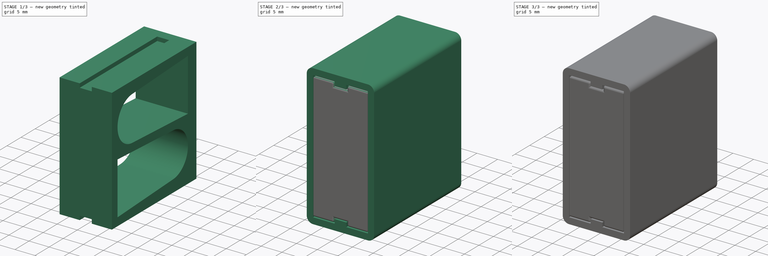
[diagram: build sequence overview — one tinted view per stage of 3, left to right]
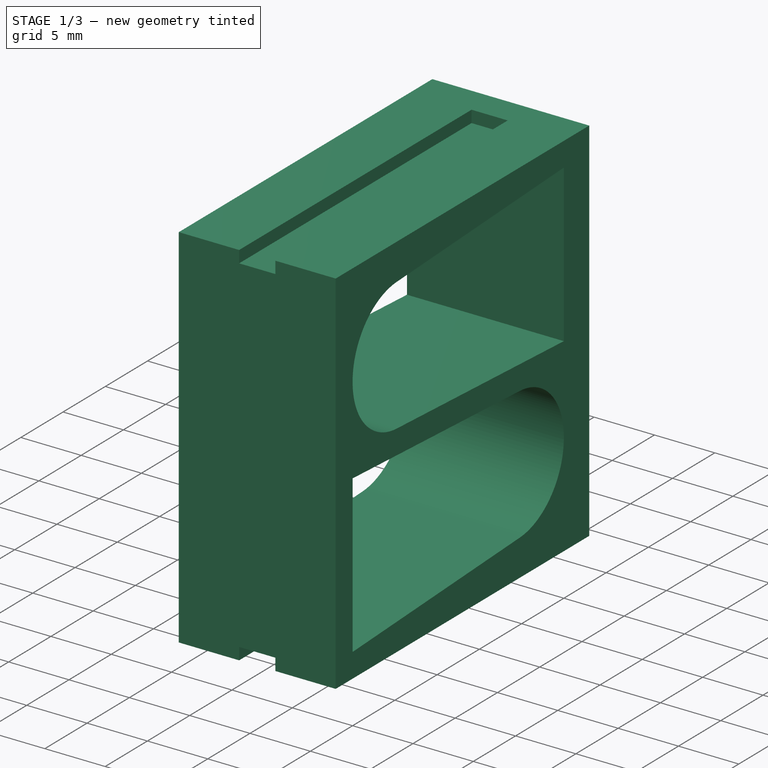
[diagram: stage 1 of 3 — iso view after this stage's code; geometry added in this stage tinted green]
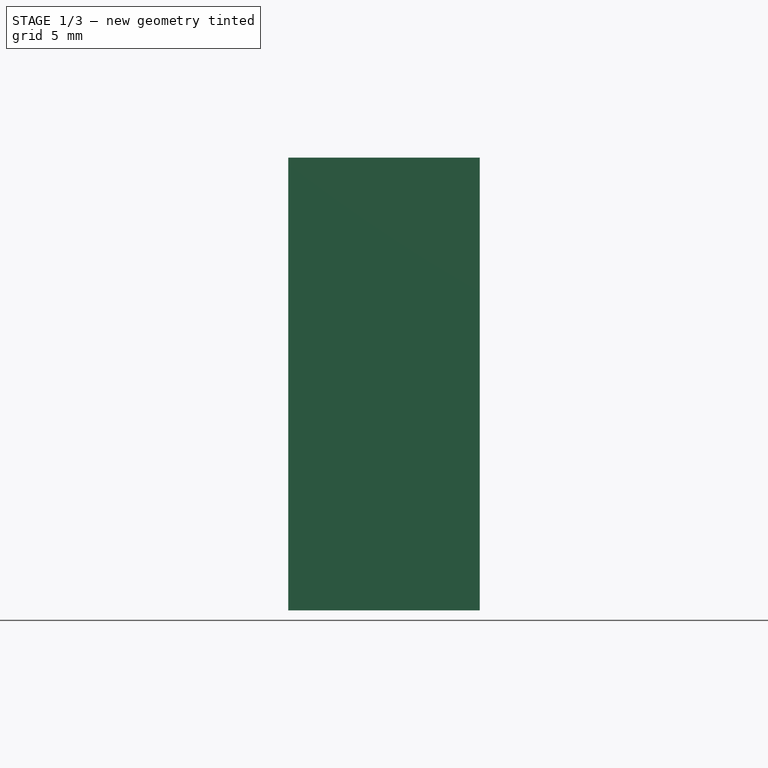
[diagram: stage 1 of 3 — front view after this stage's code; geometry added in this stage tinted green]
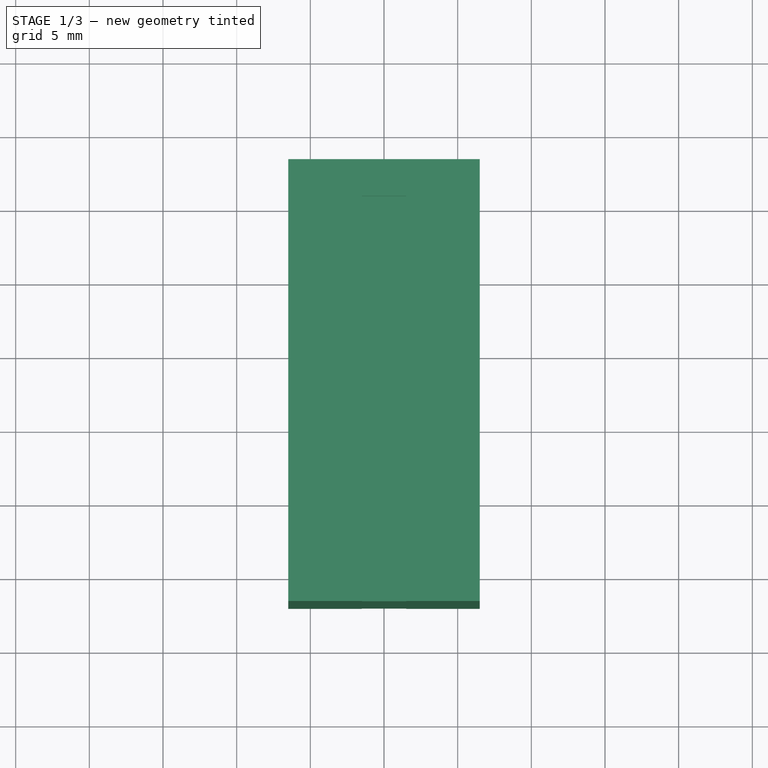
[diagram: stage 1 of 3 — top view after this stage's code; geometry added in this stage tinted green]
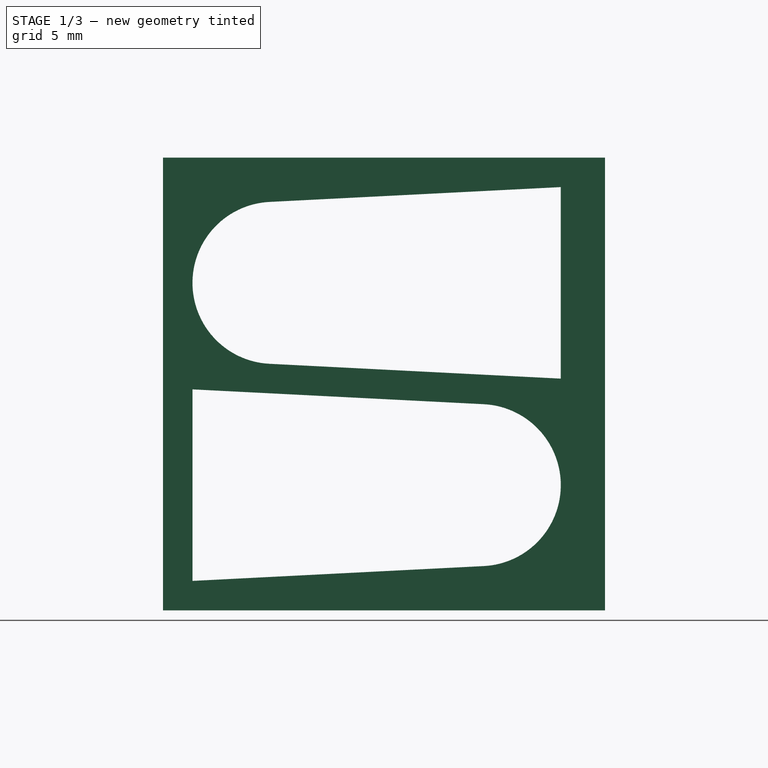
[diagram: stage 1 of 3 — right view after this stage's code; geometry added in this stage tinted green]
FCSTD DOCUMENT  (FreeCAD 1.0R38641 +678 (Git))
Label: case
License: All rights reserved
LicenseURL: https://en.wikipedia.org/wiki/All_rights_reserved
objects: Sketcher::SketchObject×5, PartDesign::Body×4, PartDesign::Pad×3, PartDesign::Revolution×1, PartDesign::FeatureBase×1, PartDesign::Pocket×1, PartDesign::Fillet×1, App::Part×1
note: 34 computed .brp shape members not serialized (recipe doc carries the construction recipe); baked Part::Feature solids carry a one-line shape summary decoded from their .brp

FEATURE [PartDesign::Body] Body002
  AllowCompound = false
  Group = -> [Clone]
  Origin = -> Origin003
  Placement = pos=(0,25,13.75) rot=(1,0,0;3.14159rad)
  Tip = -> Clone
FEATURE [PartDesign::Pad] Pad
  Direction = (1,0,0)
  Length = 13
  Length2 = 10
  Midplane = true
  Placement = pos=(0,0,0) rot=(1,1,1;2.0944rad)
  Profile = -> Sketch001
  ReferenceAxis = -> Sketch001 [N_Axis]
  Refine = true
  Suppressed = false
  Type = 0
FEATURE [Sketcher::SketchObject] Sketch002
  ArcFitTolerance = 1e-06
  AttachmentSupport = -> [Pad]
  ExternalGeometry = -> [Pad]
  FullyConstrained = true
  MakeInternals = false
  MapMode = 5
  Placement = pos=(-4e-16,-2,2e-16) rot=(0.57735,0.57735,-0.57735;2.0944rad)
  sketch-geometry (9):
    g0: LineSegment StartX=-22.2297 StartY=1.5 StartZ=0 EndX=-22.2297 EndY=-1.5 EndZ=0
    g1: LineSegment StartX=-22.2297 StartY=-1.5 StartZ=0 EndX=-21.2297 EndY=-1.5 EndZ=0
    g2: LineSegment StartX=-21.2297 StartY=-1.5 StartZ=0 EndX=-21.2297 EndY=1.5 EndZ=0
    g3: LineSegment StartX=-21.2297 StartY=1.5 StartZ=0 EndX=-22.2297 EndY=1.5 EndZ=0
    g4: GeomPoint X=-22.2297 Y=0 Z=0
    g5: LineSegment StartX=8.5 StartY=1.5 StartZ=0 EndX=7.5 EndY=1.5 EndZ=0
    g6: LineSegment StartX=7.5 StartY=1.5 StartZ=0 EndX=7.5 EndY=-1.5 EndZ=0
    g7: LineSegment StartX=7.5 StartY=-1.5 StartZ=0 EndX=8.5 EndY=-1.5 EndZ=0
    g8: LineSegment StartX=8.5 StartY=-1.5 StartZ=0 EndX=8.5 EndY=1.5 EndZ=0
  constraints (25):
    c: Coincident(g0,g1)
    c: Coincident(g1,g2)
    c: Coincident(g2,g3)
    c: Coincident(g3,g0)
    c: Vertical(g0)
    c: Vertical(g2)
    c: Horizontal(g1)
    c: Horizontal(g3)
    c: Distance(g0,g2) = 1
    c: Distance(g1,g3) = 3
    c: PointOnObject(g0,g-3)
    c: Symmetric(g0,g0,g4)
    c: PointOnObject(g4,g-1)
    c: Coincident(g5,g6)
    c: Coincident(g6,g7)
    c: Coincident(g7,g8)
    c: Coincident(g8,g5)
    c: Horizontal(g5)
    c: Horizontal(g7)
    c: Vertical(g6)
    c: Vertical(g8)
    c: PointOnObject(g5,g-4)
    c: Equal(g7,g1)
    c: Horizontal(g1,g6)
    c: Horizontal(g5,g2)
FEATURE [PartDesign::Pocket] Pocket
  BaseFeature = -> Pad
  Direction = (0,1,0)
  Length = 27.5
  Length2 = 5
  Placement = pos=(0,0,0) rot=(1,1,1;2.0944rad)
  Profile = -> Sketch002
  ReferenceAxis = -> Sketch002 [N_Axis]
  Refine = true
  Suppressed = false
  Type = 0
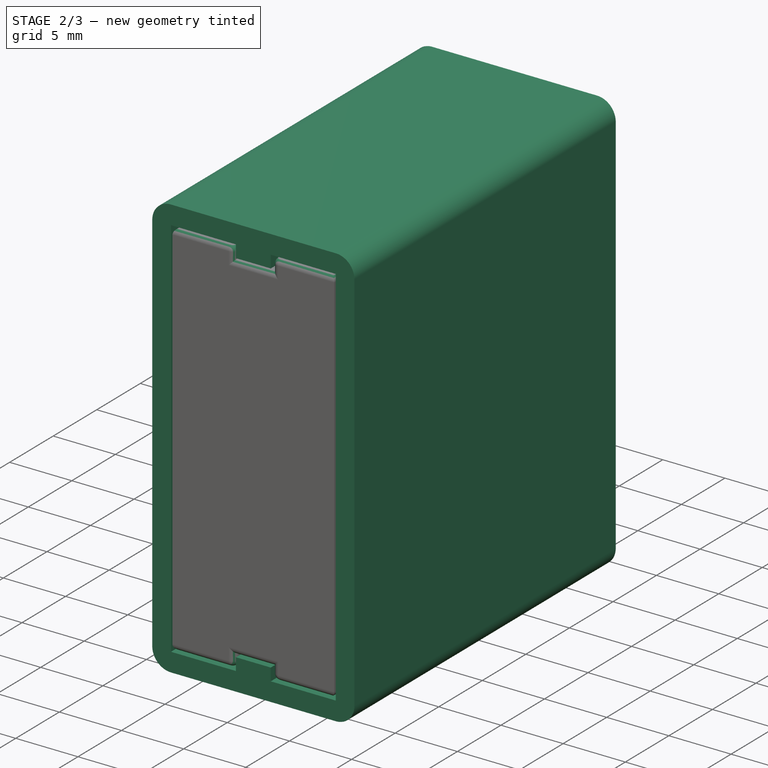
[diagram: stage 2 of 3 — iso view after this stage's code; geometry added in this stage tinted green]
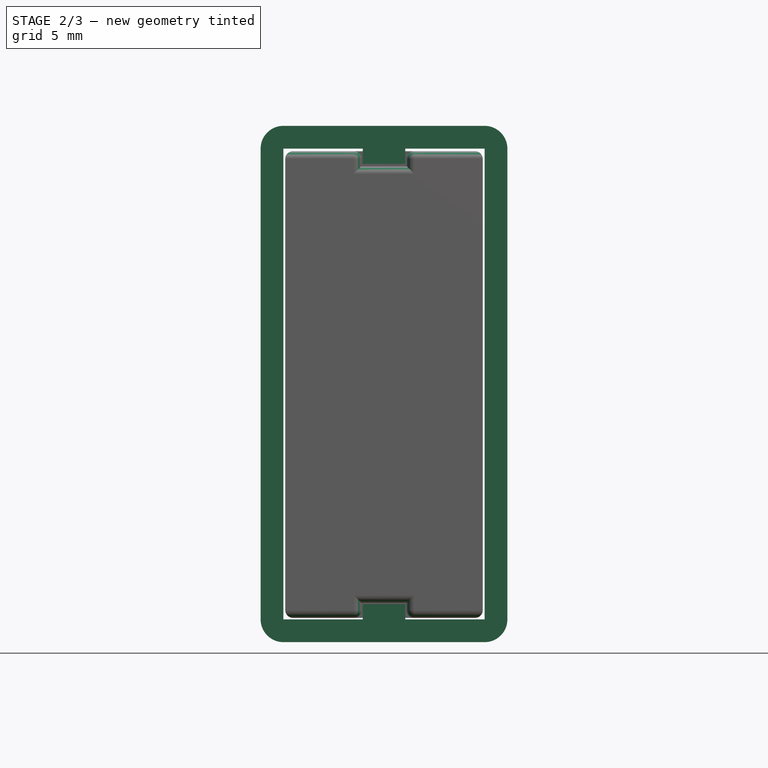
[diagram: stage 2 of 3 — front view after this stage's code; geometry added in this stage tinted green]
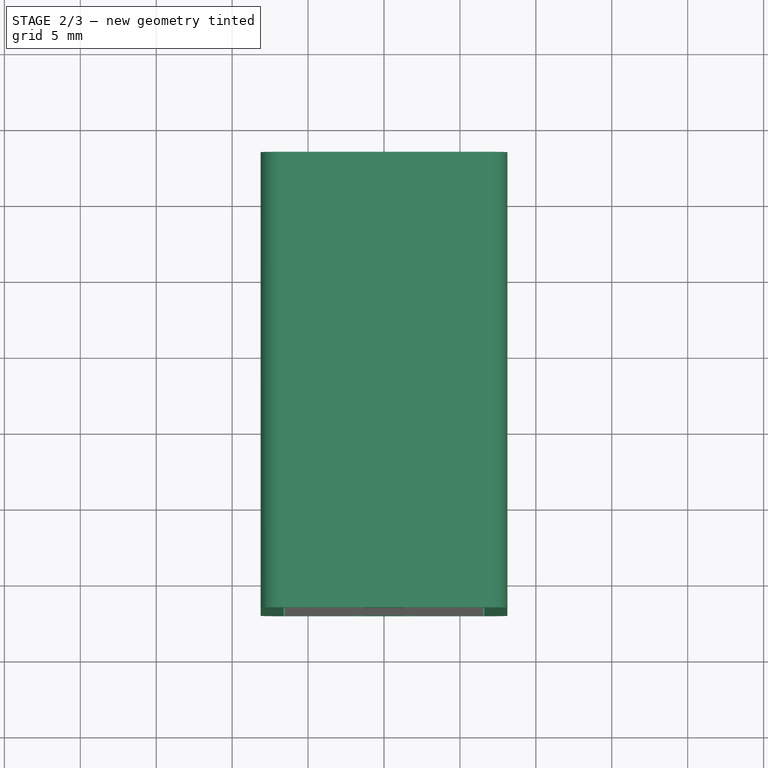
[diagram: stage 2 of 3 — top view after this stage's code; geometry added in this stage tinted green]
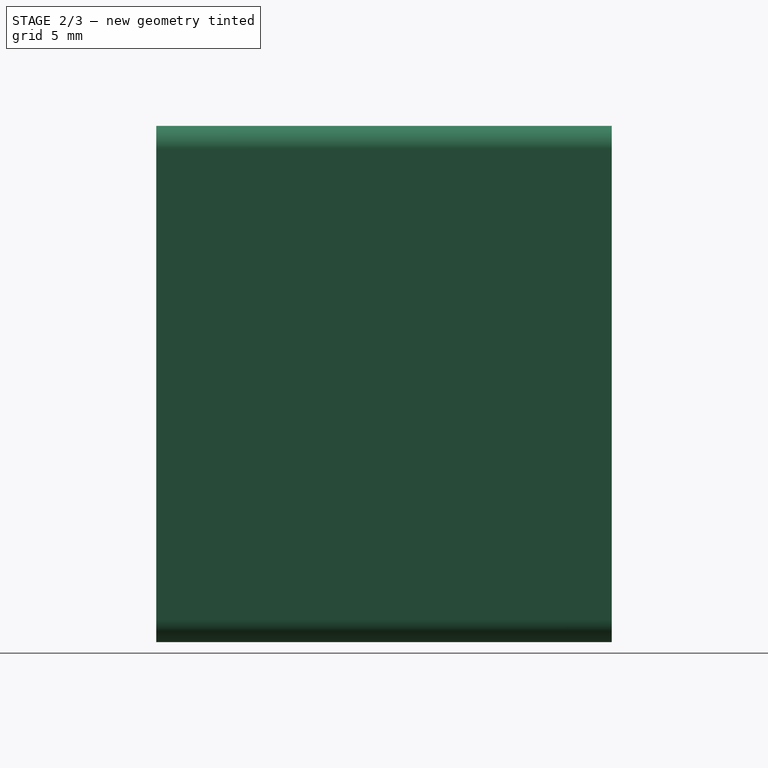
[diagram: stage 2 of 3 — right view after this stage's code; geometry added in this stage tinted green]
FEATURE [Sketcher::SketchObject] Sketch003
  ArcFitTolerance = 1e-06
  AttachmentSupport = -> [XZ_Plane004]
  FullyConstrained = true
  MakeInternals = false
  MapMode = 5
  Placement = pos=(0,0,0) rot=(1,0,0;1.5708rad)
  sketch-geometry (16):
    g0: LineSegment StartX=-6.625 StartY=22.4 StartZ=0 EndX=-6.625 EndY=-8.6 EndZ=0
    g1: LineSegment StartX=-6.625 StartY=-8.6 StartZ=0 EndX=6.625 EndY=-8.6 EndZ=0
    g2: LineSegment StartX=6.625 StartY=-8.6 StartZ=0 EndX=6.625 EndY=22.4 EndZ=0
    g3: LineSegment StartX=6.625 StartY=22.4 StartZ=0 EndX=-6.625 EndY=22.4 EndZ=0
    g4: LineSegment StartX=-8.125 StartY=22.4 StartZ=0 EndX=-8.125 EndY=-8.6 EndZ=0
    g5: LineSegment StartX=-6.625 StartY=-10.1 StartZ=0 EndX=6.625 EndY=-10.1 EndZ=0
    g6: LineSegment StartX=8.125 StartY=-8.6 StartZ=0 EndX=8.125 EndY=22.4 EndZ=0
    g7: LineSegment StartX=6.625 StartY=23.9 StartZ=0 EndX=-6.625 EndY=23.9 EndZ=0
    g8: ArcOfCircle CenterX=-6.625 CenterY=22.4 CenterZ=0 NormalX=0 NormalY=0 NormalZ=1 AngleXU=0 Radius=1.5 StartAngle=1.5708 EndAngle=3.14159
    g9: ArcOfCircle CenterX=-6.625 CenterY=-8.6 CenterZ=0 NormalX=0 NormalY=0 NormalZ=1 AngleXU=0 Radius=1.5 StartAngle=3.14159 EndAngle=4.71239
    g10: ArcOfCircle CenterX=6.625 CenterY=-8.6 CenterZ=0 NormalX=0 NormalY=0 NormalZ=1 AngleXU=0 Radius=1.5 StartAngle=4.71239 EndAngle=6.28319
    g11: ArcOfCircle CenterX=6.625 CenterY=22.4 CenterZ=0 NormalX=0 NormalY=0 NormalZ=1 AngleXU=0 Radius=1.5 StartAngle=0 EndAngle=1.5708
    g12: GeomPoint [constr] X=-8.125 Y=23.9 Z=0
    g13: GeomPoint [constr] X=8.125 Y=-10.1 Z=0
    g14: GeomPoint X=0 Y=-8.6 Z=0
    g15: GeomPoint X=1e-16 Y=-10.1 Z=0
  constraints (36):
    c: Coincident(g0,g1)
    c: Coincident(g1,g2)
    c: Coincident(g2,g3)
    c: Coincident(g3,g0)
    c: Vertical(g0)
    c: Vertical(g2)
    c: Horizontal(g1)
    c: Horizontal(g3)
    c: Tangent(g4,g8) = -1.5708
    c: Tangent(g4,g9) = -1.5708
    c: Tangent(g5,g9) = -1.5708
    c: Tangent(g5,g10) = -1.5708
    c: Tangent(g6,g10) = -1.5708
    c: Tangent(g6,g11) = -1.5708
    c: Tangent(g7,g11) = -1.5708
    c: Tangent(g7,g8) = -1.5708
    c: Vertical(g4)
    c: Vertical(g6)
    c: Horizontal(g5)
    c: Horizontal(g7)
    c: Equal(g8,g9)
    c: Equal(g9,g10)
    c: Equal(g10,g11)
    c: PointOnObject(g12,g4)
    c: PointOnObject(g12,g7)
    c: PointOnObject(g13,g5)
    c: PointOnObject(g13,g6)
    c: DistanceX(g1,g1) = 13.25
    c: Symmetric(g1,g1,g14)
    c: PointOnObject(g14,g-2)
    c: Symmetric(g5,g5,g15)
    c: Coincident(g9,g0)
    c: Distance(g1,g5) = 1.5
    c: Coincident(g11,g2)
    c: DistanceY(g2,g2) = 31
    c: Distance(g10,g-1) = 8.6
FEATURE [PartDesign::Pad] Pad001
  Direction = (0,-1,2e-16)
  Length = 28
  Length2 = 2
  Placement = pos=(0,0,0) rot=(1,0,0;1.5708rad)
  Profile = -> Sketch003
  ReferenceAxis = -> Sketch003 [N_Axis]
  Refine = true
  Reversed = true
  Suppressed = false
  Type = 4
FEATURE [Sketcher::SketchObject] Sketch004
  ArcFitTolerance = 1e-06
  AttachmentSupport = -> [Pad001]
  ExternalGeometry = -> [Pad001]
  FullyConstrained = true
  MakeInternals = false
  MapMode = 5
  Placement = pos=(0,-2,0) rot=(1,0,0;1.5708rad)
  sketch-geometry (9):
    g0: LineSegment StartX=-1.4 StartY=22.4 StartZ=0 EndX=-1.4 EndY=21.4 EndZ=0
    g1: LineSegment StartX=-1.4 StartY=21.4 StartZ=0 EndX=1.4 EndY=21.4 EndZ=0
    g2: LineSegment StartX=1.4 StartY=21.4 StartZ=0 EndX=1.4 EndY=22.4 EndZ=0
    g3: LineSegment StartX=1.4 StartY=22.4 StartZ=0 EndX=-1.4 EndY=22.4 EndZ=0
    g4: LineSegment StartX=-1.4 StartY=-8.6 StartZ=0 EndX=1.4 EndY=-8.6 EndZ=0
    g5: LineSegment StartX=1.4 StartY=-8.6 StartZ=0 EndX=1.4 EndY=-7.6 EndZ=0
    g6: LineSegment StartX=1.4 StartY=-7.6 StartZ=0 EndX=-1.4 EndY=-7.6 EndZ=0
    g7: LineSegment StartX=-1.4 StartY=-7.6 StartZ=0 EndX=-1.4 EndY=-8.6 EndZ=0
    g8: GeomPoint X=0 Y=22.4 Z=0
  constraints (25):
    c: Coincident(g0,g1)
    c: Coincident(g1,g2)
    c: Coincident(g2,g3)
    c: Coincident(g3,g0)
    c: Vertical(g0)
    c: Vertical(g2)
    c: Horizontal(g1)
    c: Horizontal(g3)
    c: Distance(g0,g2) = 2.8
    c: Distance(g1,g3) = 1
    c: PointOnObject(g0,g-4)
    c: Coincident(g4,g5)
    c: Coincident(g5,g6)
    c: Coincident(g6,g7)
    c: Coincident(g7,g4)
    c: Horizontal(g4)
    c: Horizontal(g6)
    c: Vertical(g5)
    c: Vertical(g7)
    c: PointOnObject(g4,g-3)
    c: Vertical(g5,g1)
    c: Vertical(g0,g6)
    c: Equal(g7,g0)
    c: Symmetric(g3,g3,g8)
    c: PointOnObject(g8,g-2)
FEATURE [PartDesign::Pad] Pad002
  BaseFeature = -> Pad001
  Direction = (0,-1,2e-16)
  Length = 1.5
  Length2 = 10
  Placement = pos=(0,0,0) rot=(1,0,0;1.5708rad)
  Profile = -> Sketch004
  ReferenceAxis = -> Sketch004 [N_Axis]
  Refine = true
  Reversed = true
  Suppressed = false
  Type = 0
FEATURE [PartDesign::Body] Body003  label="OuterBody"
  AllowCompound = false
  Group = -> [Sketch003,Pad001,Sketch004,Pad002]
  Origin = -> Origin004
  Tip = -> Pad002
FEATURE [PartDesign::Fillet] Fillet
  Base = -> Pocket [Edge22,Edge20,Edge19,Edge16,Edge13,Edge15,Edge25,Edge26,Edge28,Edge2,Edge6,Edge24,Edge12,Edge8,Edge35,Edge46,Edge44,Edge47,Edge4,Edge10,Edge3,Edge5,Edge9,Edge11,Edge41,Edge40,Edge37,Edge36,Edge58,Edge57,Edge54,Edge53]
  BaseFeature = -> Pocket
  Placement = pos=(0,0,0) rot=(1,1,1;2.0944rad)
  Radius = 0.5
  Refine = true
  SupportTransform = false
  Suppressed = false
  UseAllEdges = false
FEATURE [PartDesign::Body] Body001  label="InnerBody"
  AllowCompound = false
  Group = -> [Sketch001,Pad,Sketch002,Pocket,Fillet]
  Origin = -> Origin002
  Tip = -> Fillet
FEATURE [App::Part] Part  label="Case"
  Group = -> [Body001,Body003]
  Origin = -> Origin001
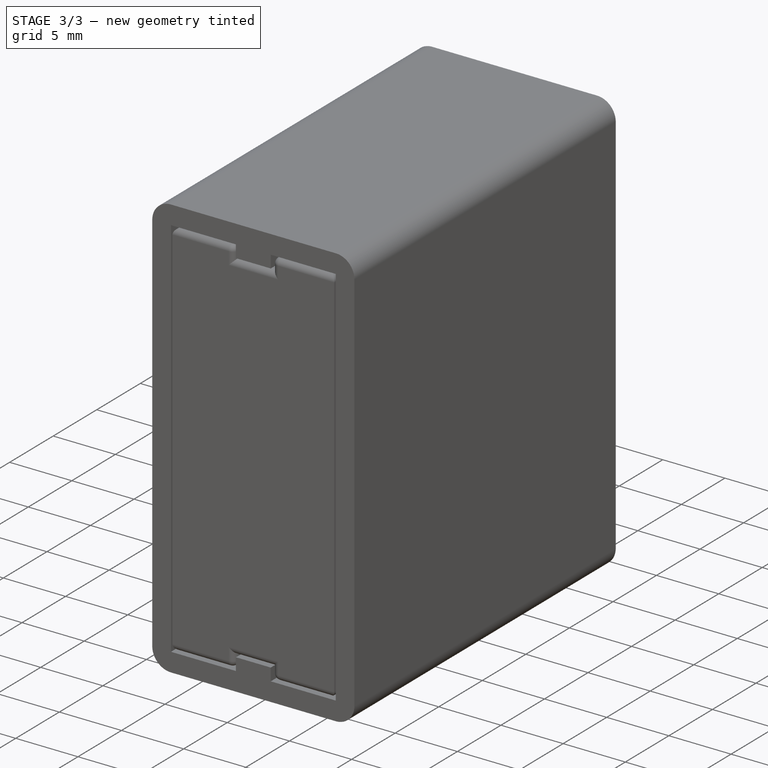
[diagram: stage 3 of 3 — iso view after this stage's code; geometry added in this stage tinted green]
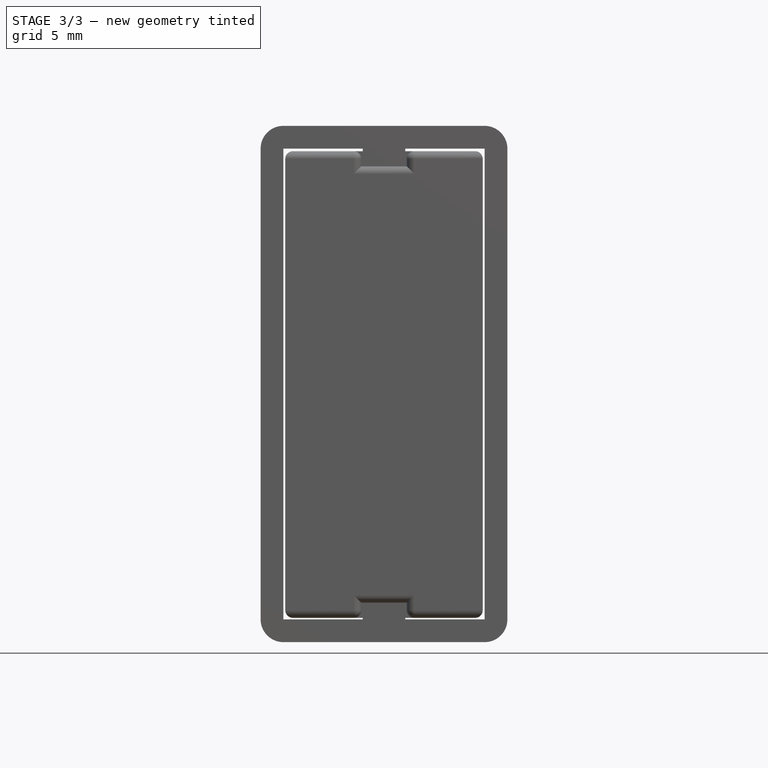
[diagram: stage 3 of 3 — front view after this stage's code; geometry added in this stage tinted green]
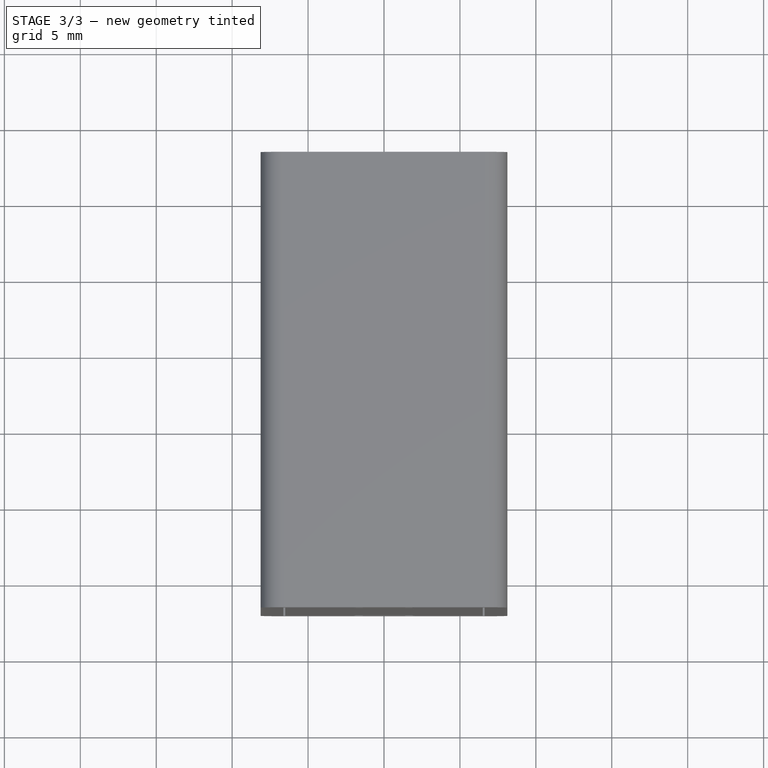
[diagram: stage 3 of 3 — top view after this stage's code; geometry added in this stage tinted green]
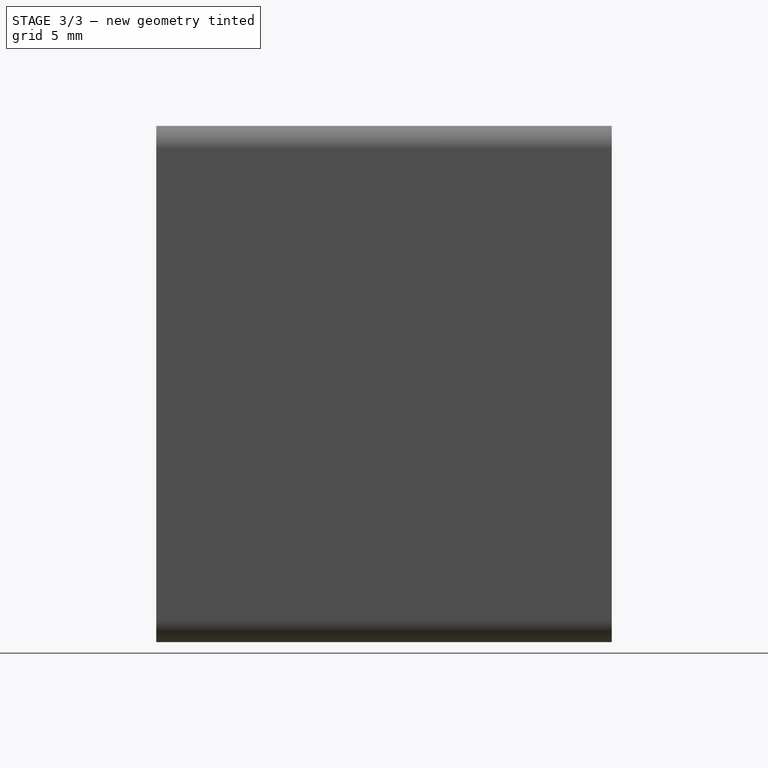
[diagram: stage 3 of 3 — right view after this stage's code; geometry added in this stage tinted green]
FEATURE [Sketcher::SketchObject] Sketch
  ArcFitTolerance = 1e-06
  AttachmentSupport = -> [XY_Plane]
  FullyConstrained = true
  MakeInternals = false
  MapMode = 5
  expr: Constraints[10] = 11 / 2
  expr: Constraints[8] = 13 / 2
  sketch-geometry (4):
    g0: LineSegment StartX=0 StartY=0 StartZ=0 EndX=-6.5 EndY=0 EndZ=0
    g1: LineSegment StartX=-6.5 StartY=0 StartZ=0 EndX=-5.49288 EndY=19.7797 EndZ=0
    g2: ArcOfCircle CenterX=0 CenterY=19.5 CenterZ=0 NormalX=0 NormalY=0 NormalZ=1 AngleXU=0 Radius=5.5 StartAngle=1.5708 EndAngle=3.09072
    g3: LineSegment StartX=3e-16 StartY=25 StartZ=0 EndX=0 EndY=0 EndZ=0
  constraints (11):
    c: Coincident(g-1,g0)
    c: PointOnObject(g0,g-1)
    c: Coincident(g0,g1)
    c: Tangent(g1,g2) = 1.5708
    c: PointOnObject(g2,g-2)
    c: Coincident(g2,g3)
    c: Coincident(g3,g0)
    c: PointOnObject(g2,g-2)
    c: DistanceX(g0,g0) = 6.5
    c: DistanceY(g0,g2) = 25
    c: Radius(g2) = 5.5
FEATURE [PartDesign::Revolution] Revolution
  Angle = 360
  Angle2 = 60
  Axis = (0,1,0)
  Base = (0,0,0)
  Profile = -> Sketch
  ReferenceAxis = -> Sketch [V_Axis]
  Refine = true
  Suppressed = false
  Type = 0
FEATURE [PartDesign::Body] Body  label="EarPlug"
  AllowCompound = false
  Group = -> [Sketch,Revolution]
  Origin = -> Origin
  Tip = -> Revolution
FEATURE [Sketcher::SketchObject] Sketch001
  ArcFitTolerance = 1e-06
  AttachmentSupport = -> [YZ_Plane002]
  FullyConstrained = true
  MakeInternals = false
  MapMode = 5
  Placement = pos=(0,0,0) rot=(0.57735,0.57735,0.57735;2.0944rad)
  expr: Constraints[13] = 11 / 2
  sketch-geometry (16):
    g0: LineSegment StartX=-2 StartY=22.2297 StartZ=0 EndX=-2 EndY=-8.5 EndZ=0
    g1: LineSegment StartX=-2 StartY=-8.5 StartZ=0 EndX=28 EndY=-8.5 EndZ=0
    g2: LineSegment StartX=28 StartY=-8.5 StartZ=0 EndX=28 EndY=22.2297 EndZ=0
    g3: LineSegment StartX=28 StartY=22.2297 StartZ=0 EndX=-2 EndY=22.2297 EndZ=0
    g4: LineSegment StartX=0 StartY=-6.5 StartZ=0 EndX=0 EndY=6.5 EndZ=0
    g5: LineSegment StartX=0 StartY=6.5 StartZ=0 EndX=19.7797 EndY=5.49288 EndZ=0
    g6: ArcOfCircle CenterX=19.5 CenterY=0 CenterZ=0 NormalX=0 NormalY=0 NormalZ=1 AngleXU=0 Radius=5.5 StartAngle=4.76326 EndAngle=7.80311
    g7: LineSegment StartX=19.7797 StartY=-5.49288 StartZ=0 EndX=0 EndY=-6.5 EndZ=0
    g8: GeomPoint X=25 Y=0 Z=0
    g9: LineSegment StartX=25 StartY=7.22967 StartZ=0 EndX=25 EndY=20.2297 EndZ=0
    g10: LineSegment StartX=25 StartY=20.2297 StartZ=0 EndX=5.22032 EndY=19.2226 EndZ=0
    g11: ArcOfCircle CenterX=5.5 CenterY=13.7297 CenterZ=0 NormalX=0 NormalY=0 NormalZ=1 AngleXU=0 Radius=5.5 StartAngle=1.62167 EndAngle=4.66152
    g12: LineSegment StartX=5.22032 StartY=8.23679 StartZ=0 EndX=25 EndY=7.22967 EndZ=0
    g13: GeomPoint X=0 Y=13.7297 Z=0
    g14: GeomPoint X=25 Y=13.7297 Z=0
    g15: GeomPoint X=0 Y=0 Z=0
  constraints (40):
    c: Coincident(g0,g1)
    c: Coincident(g1,g2)
    c: Coincident(g2,g3)
    c: Coincident(g3,g0)
    c: Vertical(g0)
    c: Vertical(g2)
    c: Horizontal(g1)
    c: Horizontal(g3)
    c: PointOnObject(g4,g-2)
    c: Coincident(g4,g5)
    c: Tangent(g5,g6) = 1.5708
    c: Coincident(g7,g4)
    c: PointOnObject(g6,g-1)
    c: Radius(g6) = 5.5
    c: DistanceY(g4,g4) = 13
    c: PointOnObject(g8,g6)
    c: PointOnObject(g8,g-1)
    c: DistanceX(g-1,g8) = 25
    c: Vertical(g9)
    c: Coincident(g9,g10)
    c: Tangent(g10,g11) = -1.5708
    c: Coincident(g11,g12)
    c: Coincident(g12,g9)
    c: Vertical(g9,g8)
    c: Equal(g4,g9)
    c: Equal(g6,g11)
    c: Tangent(g12,g11,g11) = -1.5708
    c: PointOnObject(g13,g11)
    c: Horizontal(g13,g11)
    c: PointOnObject(g13,g-2)
    c: Symmetric(g9,g9,g14)
    c: Horizontal(g14,g11)
    c: Distance(g4,g1) = 2
    c: Distance(g4,g0) = 2
    c: DistanceX(g9,g2) = 3
    c: Distance(g9,g3) = 2
    c: Symmetric(g4,g4,g15)
    c: Coincident(g15,g-1)
    c: Tangent(g6,g7) = 1.5708
    c: Distance(g12,g5) = 2
FEATURE [PartDesign::FeatureBase] Clone
  BaseFeature = -> Body
  Suppressed = false
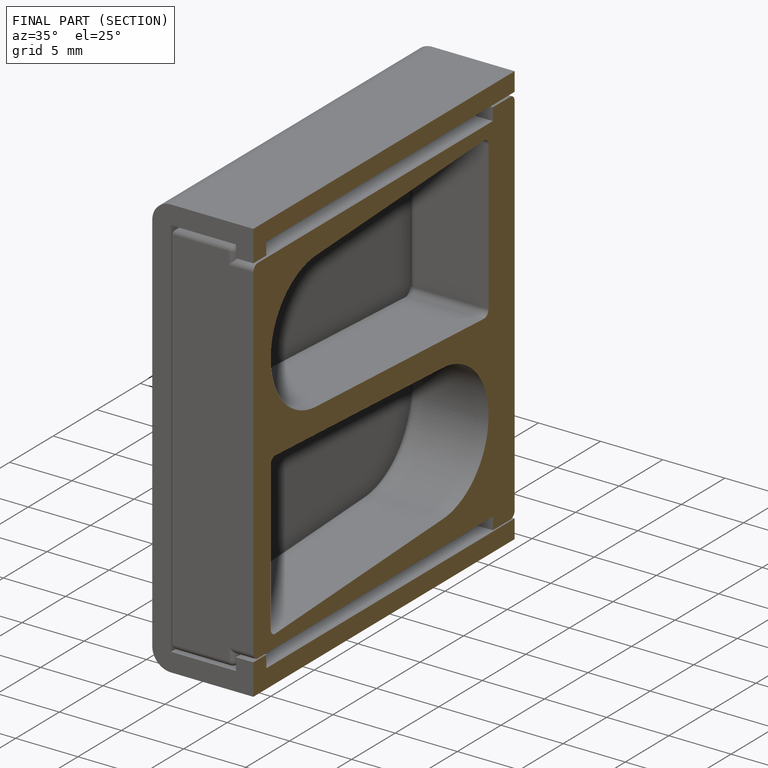
[diagram: finished part — half-section view (interior)]
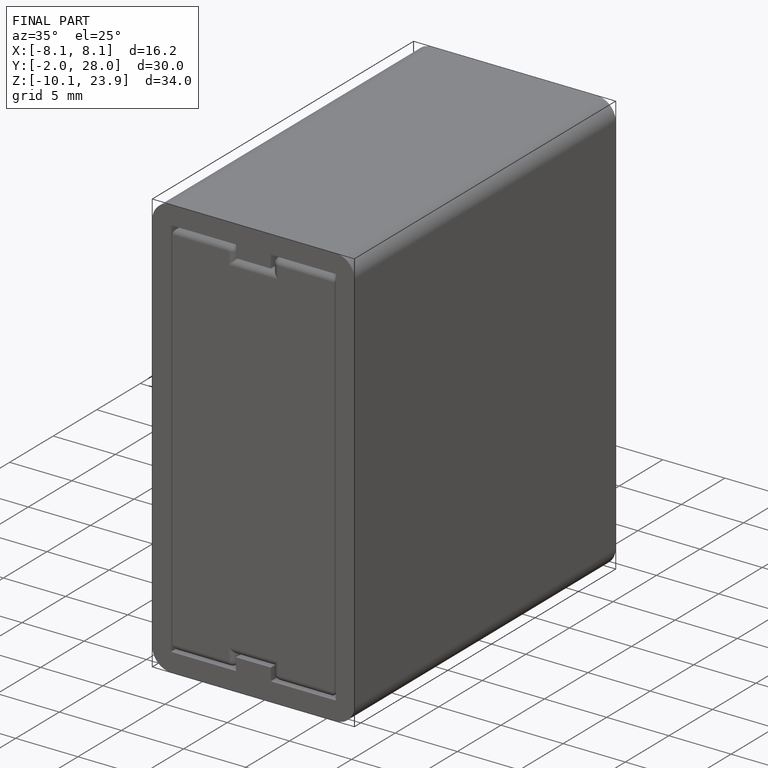
[diagram: finished part — iso view with bounding-box wireframe]
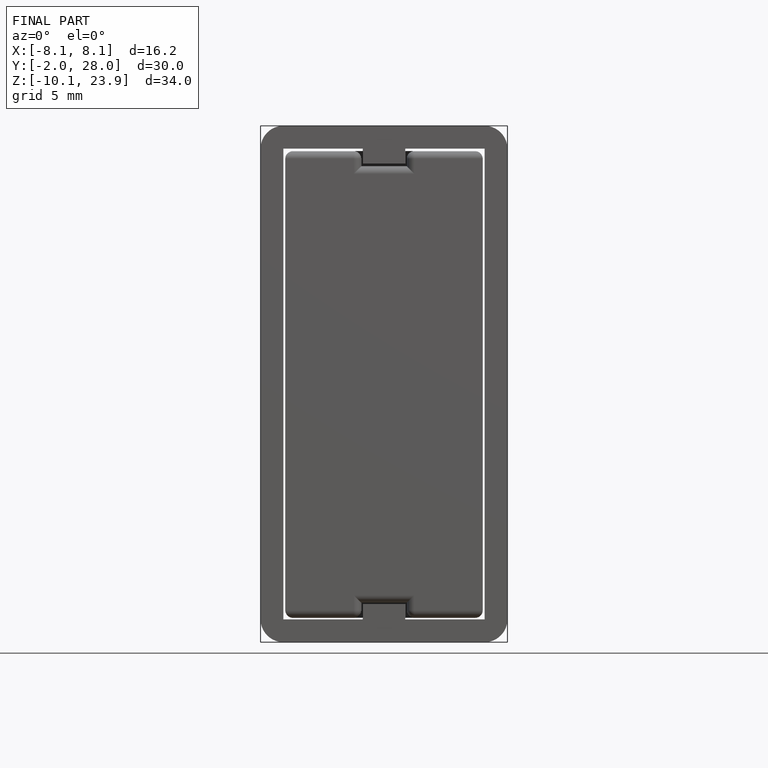
[diagram: finished part — front view with bounding-box wireframe]
